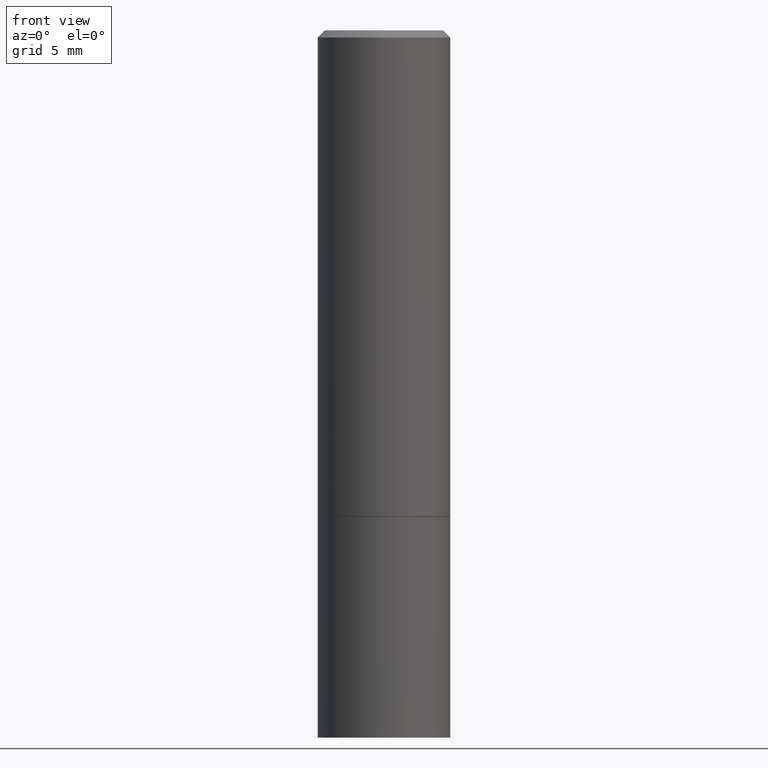
[diagram: clean part render]
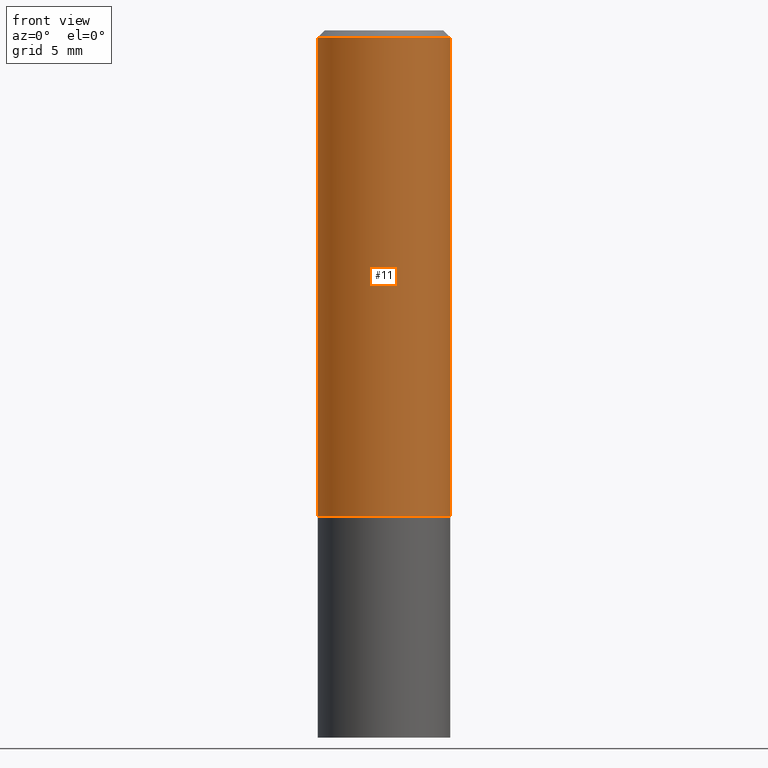
[diagram: same view with one face highlighted and labeled with its STEP entity id]
A machine part, front view. The second image highlights one B-rep face of the part: STEP entity #11.
In plain terms, the highlighted cylindrical surface (partial cylindrical patch) has radius 4.7625 mm, axis along (-0, 0, 1).
Its self-contained STEP definition (entity closure, byte-faithful):
#1 = ORIENTED_EDGE ( 'NONE', *, *, #124, .F. ) ;
#10 = CARTESIAN_POINT ( 'NONE',  ( 3.360074139698377778E-29, -4.797295359570481134E-15, -1.373999999999999888 ) ) ;
#11 = ADVANCED_FACE ( 'NONE', ( #349 ), #215, .T. ) ;
#20 = DIRECTION ( 'NONE',  ( -2.445468806185136877E-29, 3.491481338843145188E-15, 1.000000000000000000 ) ) ;
#24 = DIRECTION ( 'NONE',  ( -2.445468806185136597E-29, 3.491481338843145583E-15, 1.000000000000000000 ) ) ;
#35 = LINE ( 'NONE', #191, #234 ) ;
#38 = VERTEX_POINT ( 'NONE', #80 ) ;
#49 = CIRCLE ( 'NONE', #295, 0.1875000000000000278 ) ;
#54 = EDGE_CURVE ( 'NONE', #38, #84, #236, .T. ) ;
#56 = CARTESIAN_POINT ( 'NONE',  ( 0.1874999999999998335, -1.356173001359024283E-15, -0.02000000000000004205 ) ) ;
#78 = DIRECTION ( 'NONE',  ( 1.000000000000000000, -6.982962677686266711E-15, 0.000000000000000000 ) ) ;
#80 = CARTESIAN_POINT ( 'NONE',  ( -0.1874999999999998335, 1.239475875289310724E-15, -0.02000000000000004205 ) ) ;
#84 = VERTEX_POINT ( 'NONE', #56 ) ;
#89 = AXIS2_PLACEMENT_3D ( 'NONE', #116, #24, #242 ) ;
#97 = EDGE_LOOP ( 'NONE', ( #1, #121, #152, #308 ) ) ;
#109 = EDGE_CURVE ( 'NONE', #262, #84, #226, .T. ) ;
#110 = CARTESIAN_POINT ( 'NONE',  ( 0.1875000000000000278, -6.106600861636656931E-15, -1.373999999999999888 ) ) ;
#116 = CARTESIAN_POINT ( 'NONE',  ( 0.000000000000000000, 0.000000000000000000, 0.000000000000000000 ) ) ;
#121 = ORIENTED_EDGE ( 'NONE', *, *, #314, .T. ) ;
#124 = EDGE_CURVE ( 'NONE', #199, #38, #35, .T. ) ;
#125 = AXIS2_PLACEMENT_3D ( 'NONE', #317, #347, #78 ) ;
#152 = ORIENTED_EDGE ( 'NONE', *, *, #109, .T. ) ;
#154 = DIRECTION ( 'NONE',  ( -2.445468806185136877E-29, 3.491481338843145188E-15, 1.000000000000000000 ) ) ;
#171 = CARTESIAN_POINT ( 'NONE',  ( -0.1874999999999999722, -1.101294863623483776E-15, -1.373999999999999888 ) ) ;
#181 = VECTOR ( 'NONE', #154, 39.37007874015748143 ) ;
#186 = DIRECTION ( 'NONE',  ( 1.000000000000000000, -6.982962677686266711E-15, 0.000000000000000000 ) ) ;
#191 = CARTESIAN_POINT ( 'NONE',  ( -0.1874999999999999167, 1.332267629550187257E-15, -9.223003294227943787E-30 ) ) ;
#199 = VERTEX_POINT ( 'NONE', #171 ) ;
#200 = CARTESIAN_POINT ( 'NONE',  ( 0.1874999999999999167, -1.309305502066174219E-15, 9.142831454617375408E-30 ) ) ;
#215 = CYLINDRICAL_SURFACE ( 'NONE', #89, 0.1874999999999999167 ) ;
#226 = LINE ( 'NONE', #200, #181 ) ;
#234 = VECTOR ( 'NONE', #20, 39.37007874015748143 ) ;
#236 = CIRCLE ( 'NONE', #125, 0.1874999999999998335 ) ;
#242 = DIRECTION ( 'NONE',  ( 1.000000000000000000, -6.982962677686265922E-15, 4.876176775795935793E-29 ) ) ;
#262 = VERTEX_POINT ( 'NONE', #110 ) ;
#295 = AXIS2_PLACEMENT_3D ( 'NONE', #10, #296, #186 ) ;
#296 = DIRECTION ( 'NONE',  ( -2.445468806185136597E-29, 3.491481338843145583E-15, 1.000000000000000000 ) ) ;
#308 = ORIENTED_EDGE ( 'NONE', *, *, #54, .F. ) ;
#314 = EDGE_CURVE ( 'NONE', #199, #262, #49, .T. ) ;
#317 = CARTESIAN_POINT ( 'NONE',  ( 4.890937612370283668E-31, -6.982962677686305168E-17, -0.02000000000000004205 ) ) ;
#347 = DIRECTION ( 'NONE',  ( -2.445468806185136597E-29, 3.491481338843145583E-15, 1.000000000000000000 ) ) ;
#349 = FACE_OUTER_BOUND ( 'NONE', #97, .T. ) ;